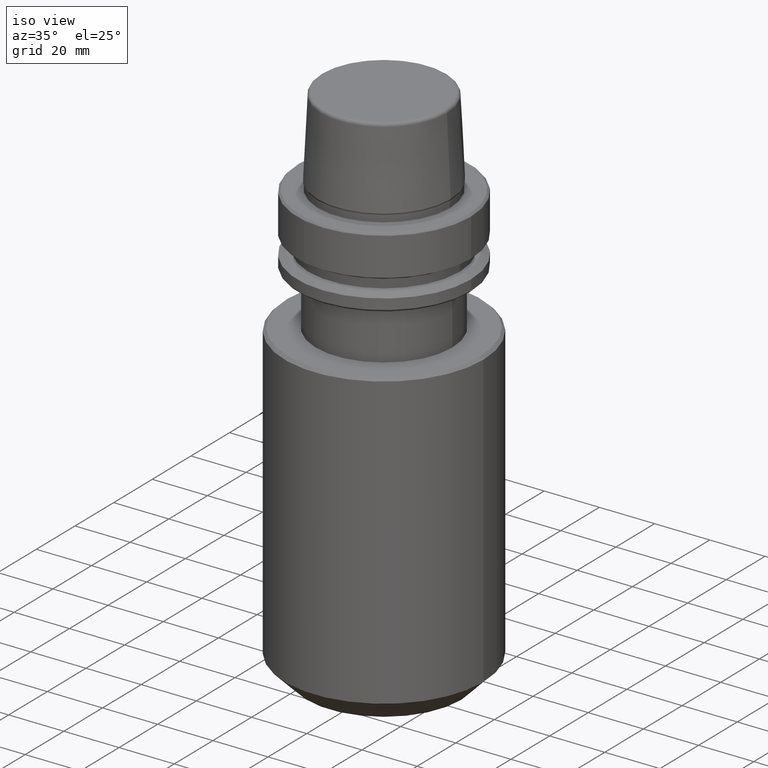
[diagram: clean part render]
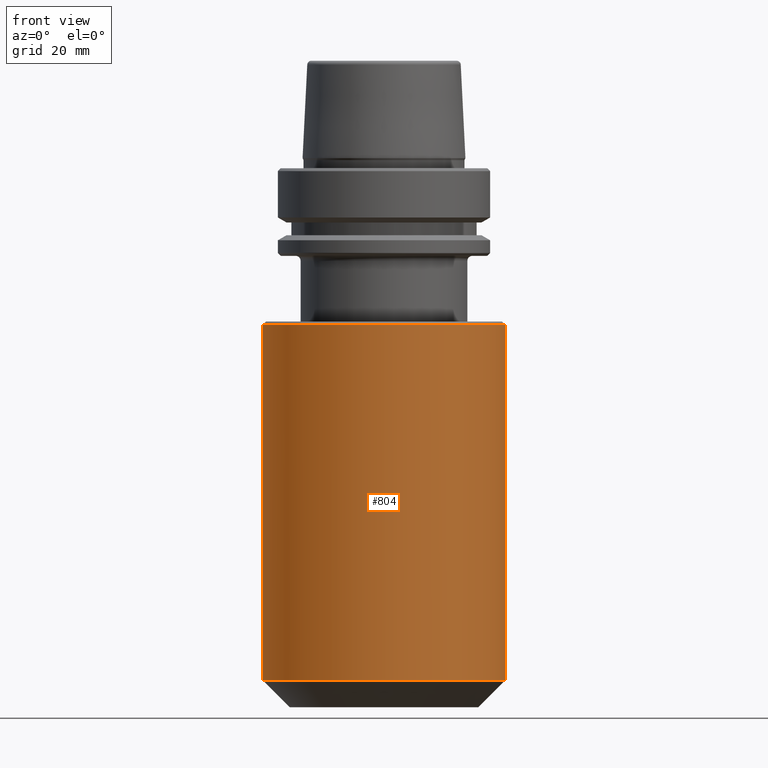
[diagram: tour spotlight — one face highlighted and labeled with its STEP entity id]
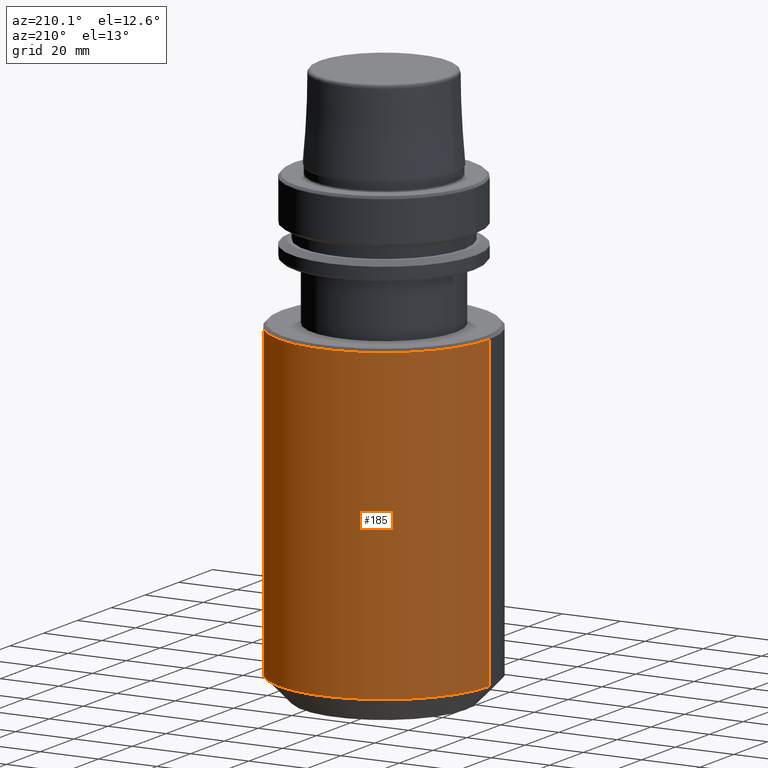
[diagram: tour spotlight — one face highlighted and labeled with its STEP entity id]
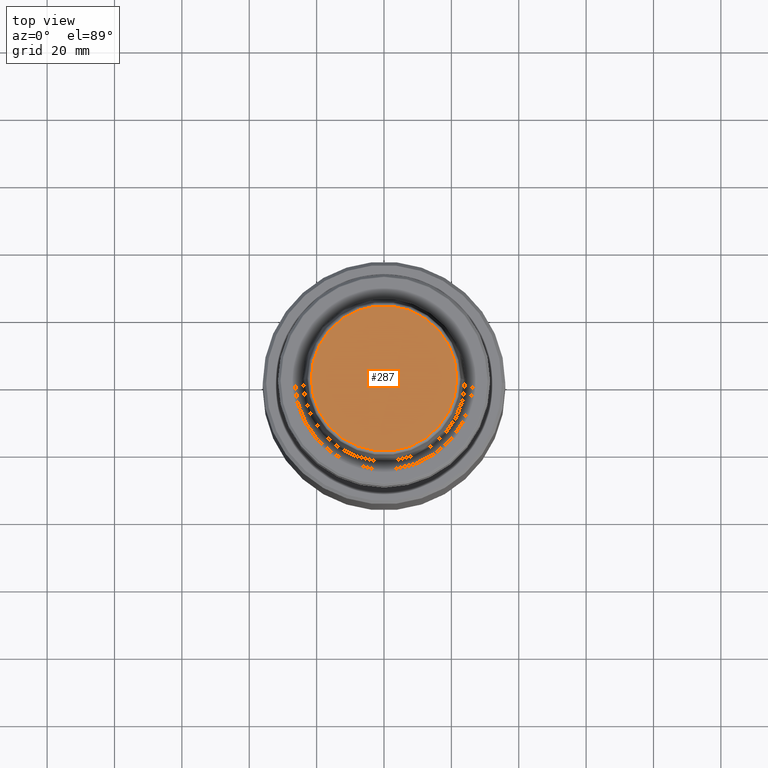
[diagram: tour spotlight — one face highlighted and labeled with its STEP entity id]
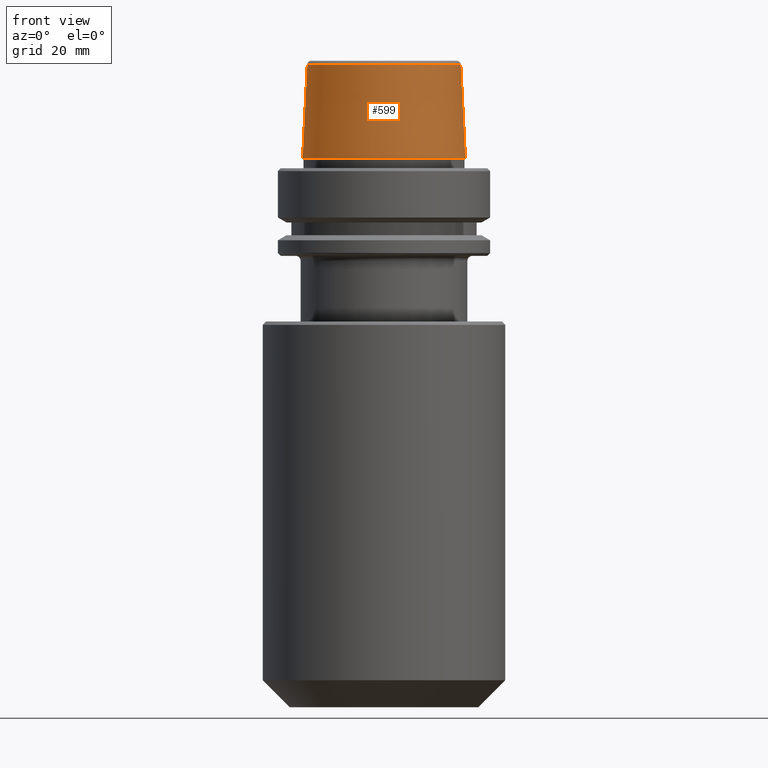
[diagram: tour spotlight — one face highlighted and labeled with its STEP entity id]
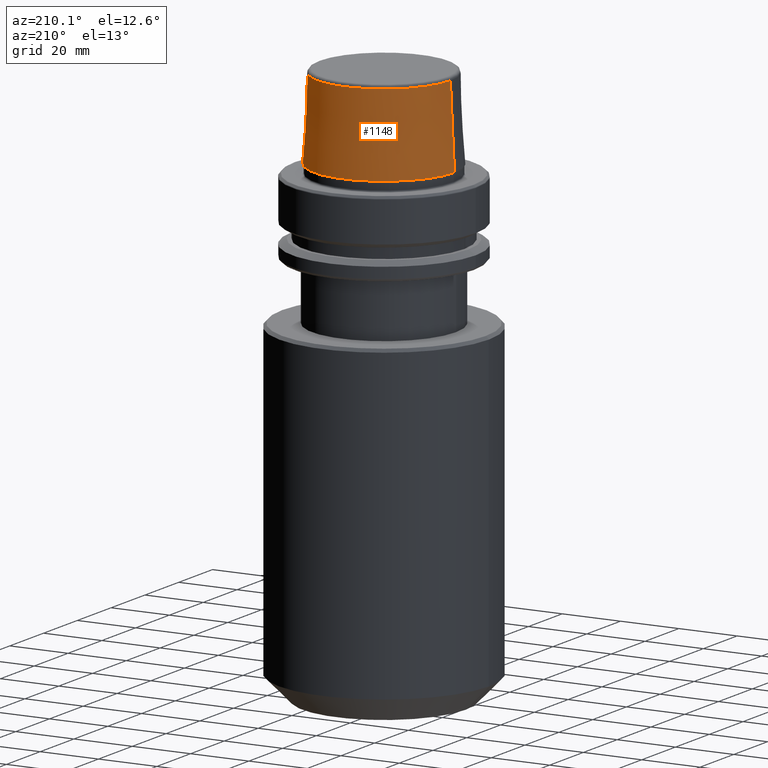
[diagram: tour spotlight — one face highlighted and labeled with its STEP entity id]
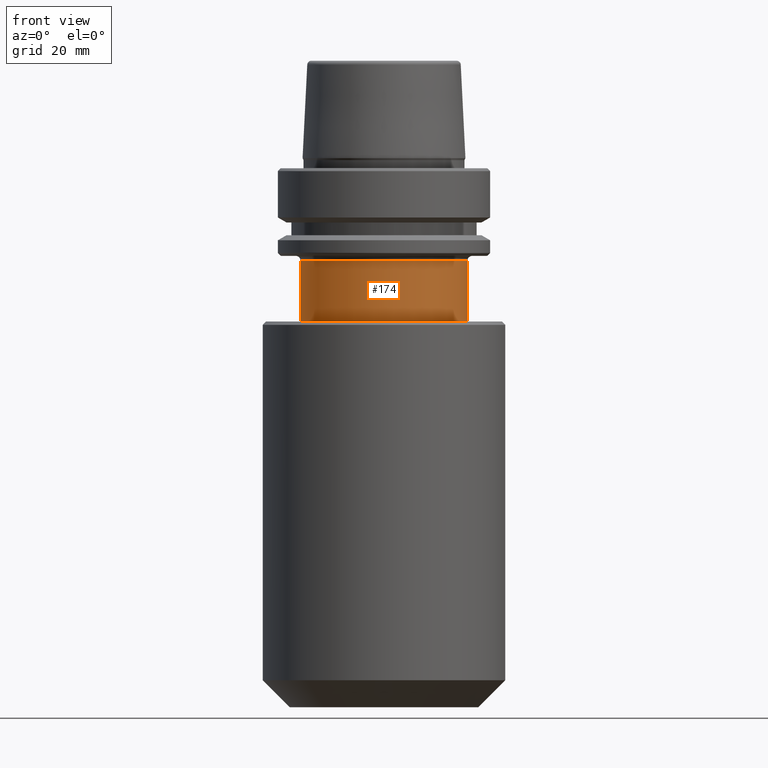
[diagram: tour spotlight — one face highlighted and labeled with its STEP entity id]
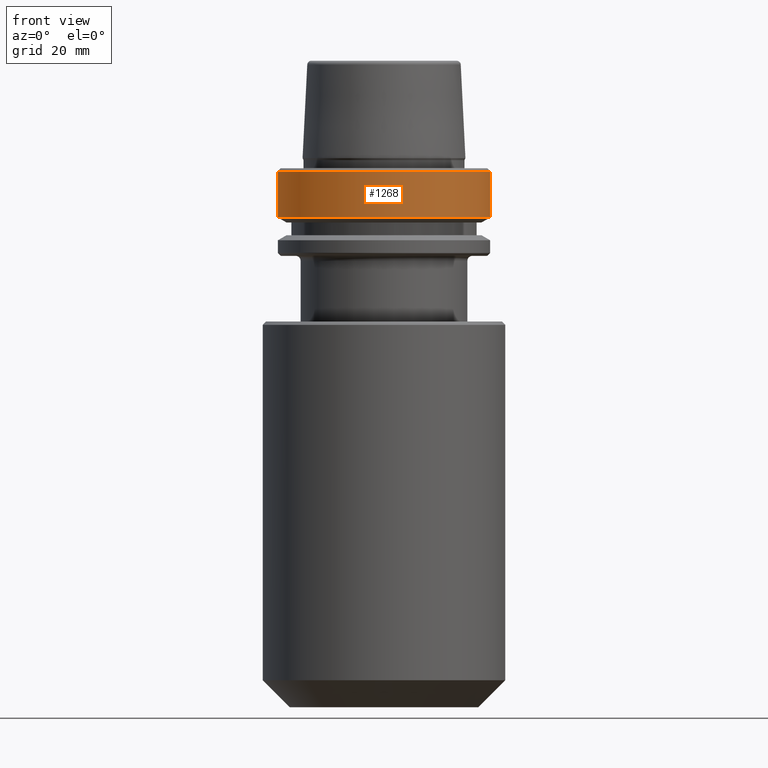
[diagram: tour spotlight — one face highlighted and labeled with its STEP entity id]
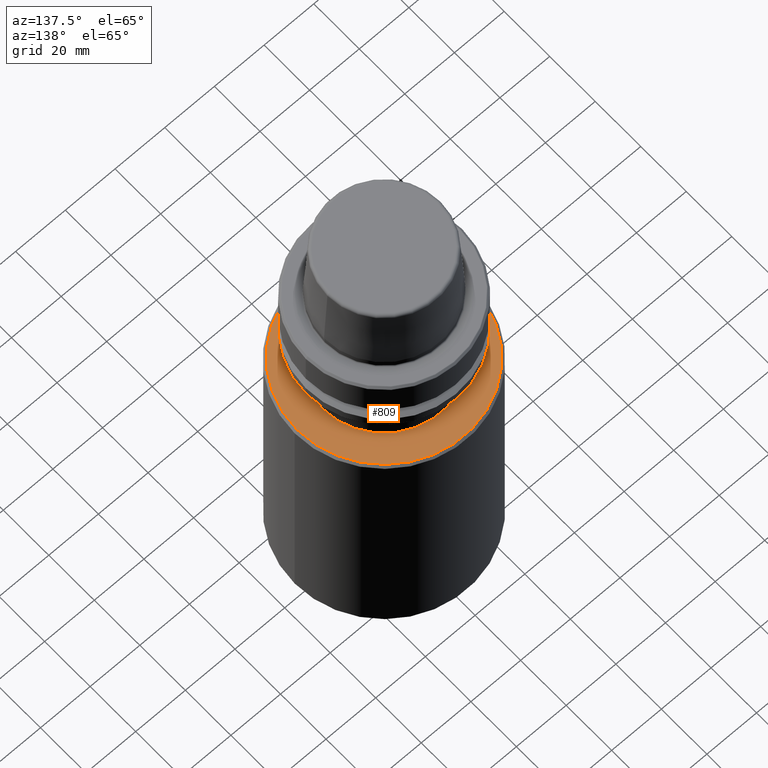
[diagram: tour spotlight — one face highlighted and labeled with its STEP entity id]
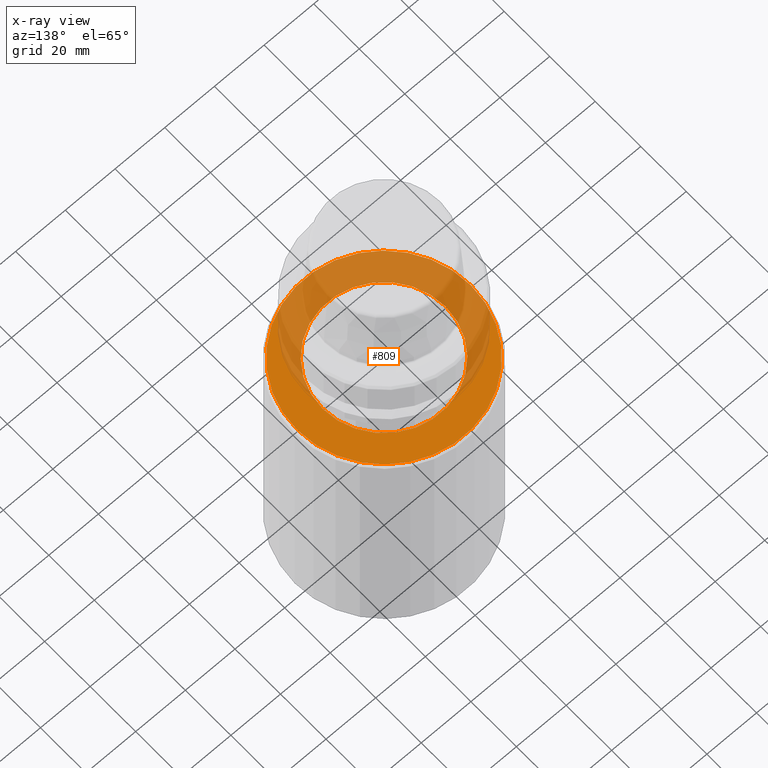
[diagram: x-ray of the same camera — body ghosted, this tour face saturated]
A machine part: a face-by-face anatomy tour. The part has 51 B-rep faces; the first image is the clean iso view, then the 8 largest visible faces are spotlighted one at a time (largest first), each with its STEP entity span.

Face 1 — front view, entity #804. In plain terms, the highlighted cylindrical surface (partial cylindrical patch) has radius 36 mm, axis along (-0, -0, 1).
Definition (entity closure, byte-faithful):
#22 = CARTESIAN_POINT ( 'NONE',  ( -36.00000000000000000, 4.408728476930470900E-015, 31.31059451800105700 ) ) ;
#42 = CIRCLE ( 'NONE', #656, 36.00000000000000000 ) ;
#124 = DIRECTION ( 'NONE',  ( -0.0000000000000000000, -0.0000000000000000000, 1.000000000000000000 ) ) ;
#172 = CYLINDRICAL_SURFACE ( 'NONE', #208, 36.00000000000000000 ) ;
#187 = LINE ( 'NONE', #849, #1352 ) ;
#208 = AXIS2_PLACEMENT_3D ( 'NONE', #550, #436, #964 ) ;
#219 = AXIS2_PLACEMENT_3D ( 'NONE', #327, #956, #224 ) ;
#224 = DIRECTION ( 'NONE',  ( 1.000000000000000000, 0.0000000000000000000, 0.0000000000000000000 ) ) ;
#288 = EDGE_CURVE ( 'NONE', #828, #980, #1283, .T. ) ;
#327 = CARTESIAN_POINT ( 'NONE',  ( 0.0000000000000000000, 0.0000000000000000000, -151.9999999999999700 ) ) ;
#436 = DIRECTION ( 'NONE',  ( -0.0000000000000000000, -0.0000000000000000000, 1.000000000000000000 ) ) ;
#456 = ORIENTED_EDGE ( 'NONE', *, *, #1234, .F. ) ;
#471 = DIRECTION ( 'NONE',  ( 1.000000000000000000, 0.0000000000000000000, 0.0000000000000000000 ) ) ;
#489 = CIRCLE ( 'NONE', #219, 36.00000000000000000 ) ;
#517 = CARTESIAN_POINT ( 'NONE',  ( -36.00000000000000000, 0.0000000000000000000, -46.50000000000001400 ) ) ;
#550 = CARTESIAN_POINT ( 'NONE',  ( 0.0000000000000000000, 0.0000000000000000000, 31.31059451800105700 ) ) ;
#579 = CARTESIAN_POINT ( 'NONE',  ( 0.0000000000000000000, 0.0000000000000000000, -46.50000000000001400 ) ) ;
#580 = VERTEX_POINT ( 'NONE', #1288 ) ;
#656 = AXIS2_PLACEMENT_3D ( 'NONE', #579, #1231, #471 ) ;
#659 = EDGE_LOOP ( 'NONE', ( #1162, #1124, #677, #456 ) ) ;
#677 = ORIENTED_EDGE ( 'NONE', *, *, #806, .T. ) ;
#757 = CARTESIAN_POINT ( 'NONE',  ( 36.00000000000000000, 0.0000000000000000000, -151.9999999999999700 ) ) ;
#771 = VERTEX_POINT ( 'NONE', #757 ) ;
#804 = ADVANCED_FACE ( 'NONE', ( #1323 ), #172, .T. ) ;
#806 = EDGE_CURVE ( 'NONE', #771, #580, #187, .T. ) ;
#811 = EDGE_CURVE ( 'NONE', #828, #771, #489, .T. ) ;
#828 = VERTEX_POINT ( 'NONE', #1310 ) ;
#849 = CARTESIAN_POINT ( 'NONE',  ( 36.00000000000000000, 0.0000000000000000000, 31.31059451800105700 ) ) ;
#956 = DIRECTION ( 'NONE',  ( -0.0000000000000000000, -0.0000000000000000000, 1.000000000000000000 ) ) ;
#964 = DIRECTION ( 'NONE',  ( 1.000000000000000000, 0.0000000000000000000, 0.0000000000000000000 ) ) ;
#980 = VERTEX_POINT ( 'NONE', #517 ) ;
#1124 = ORIENTED_EDGE ( 'NONE', *, *, #811, .T. ) ;
#1162 = ORIENTED_EDGE ( 'NONE', *, *, #288, .F. ) ;
#1173 = DIRECTION ( 'NONE',  ( -0.0000000000000000000, -0.0000000000000000000, 1.000000000000000000 ) ) ;
#1231 = DIRECTION ( 'NONE',  ( -0.0000000000000000000, -0.0000000000000000000, 1.000000000000000000 ) ) ;
#1234 = EDGE_CURVE ( 'NONE', #980, #580, #42, .T. ) ;
#1283 = LINE ( 'NONE', #22, #1379 ) ;
#1288 = CARTESIAN_POINT ( 'NONE',  ( 36.00000000000000000, 4.408728476930470900E-015, -46.50000000000001400 ) ) ;
#1310 = CARTESIAN_POINT ( 'NONE',  ( -36.00000000000000000, 4.408728476930470900E-015, -151.9999999999999700 ) ) ;
#1323 = FACE_OUTER_BOUND ( 'NONE', #659, .T. ) ;
#1352 = VECTOR ( 'NONE', #124, 1000.000000000000000 ) ;
#1379 = VECTOR ( 'NONE', #1173, 1000.000000000000000 ) ;

Face 2 — auxiliary view, entity #185. In plain terms, the highlighted cylindrical surface (partial cylindrical patch) has radius 36 mm, axis along (-0, -0, 1).
Definition (entity closure, byte-faithful):
#1 = EDGE_CURVE ( 'NONE', #771, #828, #560, .T. ) ;
#22 = CARTESIAN_POINT ( 'NONE',  ( -36.00000000000000000, 4.408728476930470900E-015, 31.31059451800105700 ) ) ;
#94 = AXIS2_PLACEMENT_3D ( 'NONE', #819, #1060, #744 ) ;
#124 = DIRECTION ( 'NONE',  ( -0.0000000000000000000, -0.0000000000000000000, 1.000000000000000000 ) ) ;
#185 = ADVANCED_FACE ( 'NONE', ( #324 ), #736, .T. ) ;
#187 = LINE ( 'NONE', #849, #1352 ) ;
#195 = EDGE_CURVE ( 'NONE', #580, #980, #1051, .T. ) ;
#288 = EDGE_CURVE ( 'NONE', #828, #980, #1283, .T. ) ;
#324 = FACE_OUTER_BOUND ( 'NONE', #633, .T. ) ;
#517 = CARTESIAN_POINT ( 'NONE',  ( -36.00000000000000000, 0.0000000000000000000, -46.50000000000001400 ) ) ;
#560 = CIRCLE ( 'NONE', #1195, 36.00000000000000000 ) ;
#580 = VERTEX_POINT ( 'NONE', #1288 ) ;
#613 = DIRECTION ( 'NONE',  ( 1.000000000000000000, 0.0000000000000000000, 0.0000000000000000000 ) ) ;
#633 = EDGE_LOOP ( 'NONE', ( #675, #816, #871, #1188 ) ) ;
#675 = ORIENTED_EDGE ( 'NONE', *, *, #1, .T. ) ;
#691 = DIRECTION ( 'NONE',  ( -0.0000000000000000000, -0.0000000000000000000, 1.000000000000000000 ) ) ;
#736 = CYLINDRICAL_SURFACE ( 'NONE', #94, 36.00000000000000000 ) ;
#744 = DIRECTION ( 'NONE',  ( 1.000000000000000000, 0.0000000000000000000, 0.0000000000000000000 ) ) ;
#757 = CARTESIAN_POINT ( 'NONE',  ( 36.00000000000000000, 0.0000000000000000000, -151.9999999999999700 ) ) ;
#771 = VERTEX_POINT ( 'NONE', #757 ) ;
#806 = EDGE_CURVE ( 'NONE', #771, #580, #187, .T. ) ;
#816 = ORIENTED_EDGE ( 'NONE', *, *, #288, .T. ) ;
#819 = CARTESIAN_POINT ( 'NONE',  ( 0.0000000000000000000, 0.0000000000000000000, 31.31059451800105700 ) ) ;
#828 = VERTEX_POINT ( 'NONE', #1310 ) ;
#849 = CARTESIAN_POINT ( 'NONE',  ( 36.00000000000000000, 0.0000000000000000000, 31.31059451800105700 ) ) ;
#871 = ORIENTED_EDGE ( 'NONE', *, *, #195, .F. ) ;
#960 = CARTESIAN_POINT ( 'NONE',  ( 0.0000000000000000000, 0.0000000000000000000, -46.50000000000001400 ) ) ;
#980 = VERTEX_POINT ( 'NONE', #517 ) ;
#1051 = CIRCLE ( 'NONE', #1235, 36.00000000000000000 ) ;
#1060 = DIRECTION ( 'NONE',  ( -0.0000000000000000000, -0.0000000000000000000, 1.000000000000000000 ) ) ;
#1173 = DIRECTION ( 'NONE',  ( -0.0000000000000000000, -0.0000000000000000000, 1.000000000000000000 ) ) ;
#1188 = ORIENTED_EDGE ( 'NONE', *, *, #806, .F. ) ;
#1195 = AXIS2_PLACEMENT_3D ( 'NONE', #1293, #691, #613 ) ;
#1235 = AXIS2_PLACEMENT_3D ( 'NONE', #960, #1387, #1263 ) ;
#1263 = DIRECTION ( 'NONE',  ( 1.000000000000000000, 0.0000000000000000000, 0.0000000000000000000 ) ) ;
#1283 = LINE ( 'NONE', #22, #1379 ) ;
#1288 = CARTESIAN_POINT ( 'NONE',  ( 36.00000000000000000, 4.408728476930470900E-015, -46.50000000000001400 ) ) ;
#1293 = CARTESIAN_POINT ( 'NONE',  ( 0.0000000000000000000, 0.0000000000000000000, -151.9999999999999700 ) ) ;
#1310 = CARTESIAN_POINT ( 'NONE',  ( -36.00000000000000000, 4.408728476930470900E-015, -151.9999999999999700 ) ) ;
#1352 = VECTOR ( 'NONE', #124, 1000.000000000000000 ) ;
#1379 = VECTOR ( 'NONE', #1173, 1000.000000000000000 ) ;
#1387 = DIRECTION ( 'NONE',  ( -0.0000000000000000000, -0.0000000000000000000, 1.000000000000000000 ) ) ;

Face 3 — top view, entity #287. In plain terms, the highlighted planar face has unit normal (0, 0, -1).
Definition (entity closure, byte-faithful):
#20 = CIRCLE ( 'NONE', #144, 21.58108272732117100 ) ;
#144 = AXIS2_PLACEMENT_3D ( 'NONE', #1236, #485, #1112 ) ;
#242 = VERTEX_POINT ( 'NONE', #1167 ) ;
#287 = ADVANCED_FACE ( 'NONE', ( #391 ), #718, .F. ) ;
#289 = ORIENTED_EDGE ( 'NONE', *, *, #1219, .T. ) ;
#359 = DIRECTION ( 'NONE',  ( -0.0000000000000000000, -0.0000000000000000000, 1.000000000000000000 ) ) ;
#391 = FACE_OUTER_BOUND ( 'NONE', #1009, .T. ) ;
#402 = CARTESIAN_POINT ( 'NONE',  ( 21.58108272732117100, 0.0000000000000000000, 31.89999999999999900 ) ) ;
#418 = VERTEX_POINT ( 'NONE', #402 ) ;
#485 = DIRECTION ( 'NONE',  ( -0.0000000000000000000, -0.0000000000000000000, 1.000000000000000000 ) ) ;
#668 = DIRECTION ( 'NONE',  ( -1.000000000000000000, 0.0000000000000000000, -0.0000000000000000000 ) ) ;
#714 = CARTESIAN_POINT ( 'NONE',  ( 0.0000000000000000000, 6.776263578034402700E-018, 31.89999999999999900 ) ) ;
#718 = PLANE ( 'NONE',  #759 ) ;
#759 = AXIS2_PLACEMENT_3D ( 'NONE', #714, #1040, #668 ) ;
#874 = CIRCLE ( 'NONE', #882, 21.58108272732117100 ) ;
#882 = AXIS2_PLACEMENT_3D ( 'NONE', #1109, #359, #990 ) ;
#943 = ORIENTED_EDGE ( 'NONE', *, *, #1163, .T. ) ;
#990 = DIRECTION ( 'NONE',  ( 1.000000000000000000, 0.0000000000000000000, 0.0000000000000000000 ) ) ;
#1009 = EDGE_LOOP ( 'NONE', ( #289, #943 ) ) ;
#1040 = DIRECTION ( 'NONE',  ( 0.0000000000000000000, 0.0000000000000000000, -1.000000000000000000 ) ) ;
#1109 = CARTESIAN_POINT ( 'NONE',  ( 0.0000000000000000000, 0.0000000000000000000, 31.89999999999999900 ) ) ;
#1112 = DIRECTION ( 'NONE',  ( 1.000000000000000000, 0.0000000000000000000, 0.0000000000000000000 ) ) ;
#1163 = EDGE_CURVE ( 'NONE', #242, #418, #20, .T. ) ;
#1167 = CARTESIAN_POINT ( 'NONE',  ( -21.58108272732117100, 2.716307157494421400E-015, 31.89999999999999900 ) ) ;
#1219 = EDGE_CURVE ( 'NONE', #418, #242, #874, .T. ) ;
#1236 = CARTESIAN_POINT ( 'NONE',  ( 0.0000000000000000000, 0.0000000000000000000, 31.89999999999999900 ) ) ;

Face 4 — front view, entity #599. In plain terms, the highlighted conical surface has half-angle 2.868 deg.
Definition (entity closure, byte-faithful):
#41 = VERTEX_POINT ( 'NONE', #1169 ) ;
#56 = CIRCLE ( 'NONE', #972, 22.77957961851797500 ) ;
#126 = EDGE_CURVE ( 'NONE', #177, #41, #996, .T. ) ;
#156 = EDGE_CURVE ( 'NONE', #177, #1035, #56, .T. ) ;
#158 = AXIS2_PLACEMENT_3D ( 'NONE', #396, #1022, #290 ) ;
#177 = VERTEX_POINT ( 'NONE', #731 ) ;
#290 = DIRECTION ( 'NONE',  ( 1.000000000000000000, 0.0000000000000000000, 0.0000000000000000000 ) ) ;
#291 = EDGE_CURVE ( 'NONE', #1035, #1001, #860, .T. ) ;
#353 = CARTESIAN_POINT ( 'NONE',  ( 0.0000000000000000000, 0.0000000000000000000, 3.000000000000002700 ) ) ;
#365 = EDGE_LOOP ( 'NONE', ( #797, #1150, #1260, #548 ) ) ;
#396 = CARTESIAN_POINT ( 'NONE',  ( 0.0000000000000000000, 0.0000000000000000000, 3.000000000000002700 ) ) ;
#454 = DIRECTION ( 'NONE',  ( 0.05003611051310799500, 6.127656258166094300E-018, -0.9987474093306675200 ) ) ;
#463 = VECTOR ( 'NONE', #454, 1000.000000000000200 ) ;
#473 = CARTESIAN_POINT ( 'NONE',  ( -24.17032625081241900, 0.0000000000000000000, 3.000000000000002700 ) ) ;
#506 = CARTESIAN_POINT ( 'NONE',  ( 22.77957961851797500, 0.0000000000000000000, 30.76004333261571900 ) ) ;
#519 = CARTESIAN_POINT ( 'NONE',  ( 24.17032625081241900, 2.960011267740467600E-015, 3.000000000000002700 ) ) ;
#548 = ORIENTED_EDGE ( 'NONE', *, *, #1020, .T. ) ;
#599 = ADVANCED_FACE ( 'NONE', ( #1383 ), #879, .T. ) ;
#636 = DIRECTION ( 'NONE',  ( 0.0000000000000000000, 0.0000000000000000000, -1.000000000000000000 ) ) ;
#692 = CIRCLE ( 'NONE', #158, 24.17032625081241900 ) ;
#700 = VECTOR ( 'NONE', #908, 1000.000000000000200 ) ;
#731 = CARTESIAN_POINT ( 'NONE',  ( -22.77957961851797500, 2.789693926574032200E-015, 30.76004333261571900 ) ) ;
#797 = ORIENTED_EDGE ( 'NONE', *, *, #291, .F. ) ;
#860 = LINE ( 'NONE', #1119, #463 ) ;
#879 = CONICAL_SURFACE ( 'NONE', #1159, 24.17032625081241900, 0.05005701257455992500 ) ;
#908 = DIRECTION ( 'NONE',  ( -0.05003611051310799500, 0.0000000000000000000, -0.9987474093306675200 ) ) ;
#972 = AXIS2_PLACEMENT_3D ( 'NONE', #1074, #1048, #1360 ) ;
#996 = LINE ( 'NONE', #473, #700 ) ;
#1001 = VERTEX_POINT ( 'NONE', #519 ) ;
#1020 = EDGE_CURVE ( 'NONE', #41, #1001, #692, .T. ) ;
#1022 = DIRECTION ( 'NONE',  ( -0.0000000000000000000, -0.0000000000000000000, 1.000000000000000000 ) ) ;
#1035 = VERTEX_POINT ( 'NONE', #506 ) ;
#1048 = DIRECTION ( 'NONE',  ( -0.0000000000000000000, -0.0000000000000000000, 1.000000000000000000 ) ) ;
#1074 = CARTESIAN_POINT ( 'NONE',  ( 0.0000000000000000000, 0.0000000000000000000, 30.76004333261571900 ) ) ;
#1119 = CARTESIAN_POINT ( 'NONE',  ( 24.17032625081241900, 2.960011267740467600E-015, 3.000000000000002700 ) ) ;
#1150 = ORIENTED_EDGE ( 'NONE', *, *, #156, .F. ) ;
#1159 = AXIS2_PLACEMENT_3D ( 'NONE', #353, #636, #1290 ) ;
#1169 = CARTESIAN_POINT ( 'NONE',  ( -24.17032625081241900, 0.0000000000000000000, 3.000000000000002700 ) ) ;
#1260 = ORIENTED_EDGE ( 'NONE', *, *, #126, .T. ) ;
#1290 = DIRECTION ( 'NONE',  ( -1.000000000000000000, 0.0000000000000000000, 0.0000000000000000000 ) ) ;
#1360 = DIRECTION ( 'NONE',  ( 1.000000000000000000, 0.0000000000000000000, 0.0000000000000000000 ) ) ;
#1383 = FACE_OUTER_BOUND ( 'NONE', #365, .T. ) ;

Face 5 — auxiliary view, entity #1148. In plain terms, the highlighted conical surface has half-angle 2.868 deg.
Definition (entity closure, byte-faithful):
#41 = VERTEX_POINT ( 'NONE', #1169 ) ;
#47 = CARTESIAN_POINT ( 'NONE',  ( 0.0000000000000000000, 0.0000000000000000000, 3.000000000000002700 ) ) ;
#71 = AXIS2_PLACEMENT_3D ( 'NONE', #171, #72, #1134 ) ;
#72 = DIRECTION ( 'NONE',  ( 0.0000000000000000000, 0.0000000000000000000, -1.000000000000000000 ) ) ;
#126 = EDGE_CURVE ( 'NONE', #177, #41, #996, .T. ) ;
#128 = EDGE_CURVE ( 'NONE', #1001, #41, #1259, .T. ) ;
#163 = CONICAL_SURFACE ( 'NONE', #71, 24.17032625081241900, 0.05005701257455992500 ) ;
#171 = CARTESIAN_POINT ( 'NONE',  ( 0.0000000000000000000, 0.0000000000000000000, 3.000000000000002700 ) ) ;
#177 = VERTEX_POINT ( 'NONE', #731 ) ;
#291 = EDGE_CURVE ( 'NONE', #1035, #1001, #860, .T. ) ;
#405 = EDGE_CURVE ( 'NONE', #1035, #177, #566, .T. ) ;
#454 = DIRECTION ( 'NONE',  ( 0.05003611051310799500, 6.127656258166094300E-018, -0.9987474093306675200 ) ) ;
#463 = VECTOR ( 'NONE', #454, 1000.000000000000200 ) ;
#473 = CARTESIAN_POINT ( 'NONE',  ( -24.17032625081241900, 0.0000000000000000000, 3.000000000000002700 ) ) ;
#478 = EDGE_LOOP ( 'NONE', ( #781, #1359, #1165, #765 ) ) ;
#506 = CARTESIAN_POINT ( 'NONE',  ( 22.77957961851797500, 0.0000000000000000000, 30.76004333261571900 ) ) ;
#519 = CARTESIAN_POINT ( 'NONE',  ( 24.17032625081241900, 2.960011267740467600E-015, 3.000000000000002700 ) ) ;
#566 = CIRCLE ( 'NONE', #1100, 22.77957961851797500 ) ;
#582 = DIRECTION ( 'NONE',  ( -0.0000000000000000000, -0.0000000000000000000, 1.000000000000000000 ) ) ;
#700 = VECTOR ( 'NONE', #908, 1000.000000000000200 ) ;
#731 = CARTESIAN_POINT ( 'NONE',  ( -22.77957961851797500, 2.789693926574032200E-015, 30.76004333261571900 ) ) ;
#765 = ORIENTED_EDGE ( 'NONE', *, *, #126, .F. ) ;
#781 = ORIENTED_EDGE ( 'NONE', *, *, #405, .F. ) ;
#847 = FACE_OUTER_BOUND ( 'NONE', #478, .T. ) ;
#860 = LINE ( 'NONE', #1119, #463 ) ;
#905 = DIRECTION ( 'NONE',  ( 1.000000000000000000, 0.0000000000000000000, 0.0000000000000000000 ) ) ;
#908 = DIRECTION ( 'NONE',  ( -0.05003611051310799500, 0.0000000000000000000, -0.9987474093306675200 ) ) ;
#919 = AXIS2_PLACEMENT_3D ( 'NONE', #47, #1000, #1089 ) ;
#996 = LINE ( 'NONE', #473, #700 ) ;
#1000 = DIRECTION ( 'NONE',  ( -0.0000000000000000000, -0.0000000000000000000, 1.000000000000000000 ) ) ;
#1001 = VERTEX_POINT ( 'NONE', #519 ) ;
#1035 = VERTEX_POINT ( 'NONE', #506 ) ;
#1089 = DIRECTION ( 'NONE',  ( 1.000000000000000000, 0.0000000000000000000, 0.0000000000000000000 ) ) ;
#1100 = AXIS2_PLACEMENT_3D ( 'NONE', #1233, #582, #905 ) ;
#1119 = CARTESIAN_POINT ( 'NONE',  ( 24.17032625081241900, 2.960011267740467600E-015, 3.000000000000002700 ) ) ;
#1134 = DIRECTION ( 'NONE',  ( -1.000000000000000000, 0.0000000000000000000, 0.0000000000000000000 ) ) ;
#1148 = ADVANCED_FACE ( 'NONE', ( #847 ), #163, .T. ) ;
#1165 = ORIENTED_EDGE ( 'NONE', *, *, #128, .T. ) ;
#1169 = CARTESIAN_POINT ( 'NONE',  ( -24.17032625081241900, 0.0000000000000000000, 3.000000000000002700 ) ) ;
#1233 = CARTESIAN_POINT ( 'NONE',  ( 0.0000000000000000000, 0.0000000000000000000, 30.76004333261571900 ) ) ;
#1259 = CIRCLE ( 'NONE', #919, 24.17032625081241900 ) ;
#1359 = ORIENTED_EDGE ( 'NONE', *, *, #291, .T. ) ;

Face 6 — front view, entity #174. In plain terms, the highlighted cylindrical surface (partial cylindrical patch) has radius 24.75 mm, axis along (-0, -0, 1).
Definition (entity closure, byte-faithful):
#30 = AXIS2_PLACEMENT_3D ( 'NONE', #318, #944, #220 ) ;
#58 = VECTOR ( 'NONE', #448, 1000.000000000000000 ) ;
#100 = ORIENTED_EDGE ( 'NONE', *, *, #1077, .T. ) ;
#110 = CARTESIAN_POINT ( 'NONE',  ( -24.75000000000000000, 3.031000827889699300E-015, -27.50000000000001100 ) ) ;
#142 = CARTESIAN_POINT ( 'NONE',  ( 24.75000000000000000, 0.0000000000000000000, -27.50000000000001100 ) ) ;
#174 = ADVANCED_FACE ( 'NONE', ( #608 ), #217, .T. ) ;
#217 = CYLINDRICAL_SURFACE ( 'NONE', #575, 24.75000000000000000 ) ;
#220 = DIRECTION ( 'NONE',  ( 1.000000000000000000, 0.0000000000000000000, 0.0000000000000000000 ) ) ;
#221 = LINE ( 'NONE', #729, #711 ) ;
#235 = DIRECTION ( 'NONE',  ( 1.000000000000000000, 0.0000000000000000000, 0.0000000000000000000 ) ) ;
#267 = CARTESIAN_POINT ( 'NONE',  ( 24.75000000000000000, 0.0000000000000000000, -45.50000000000001400 ) ) ;
#316 = EDGE_CURVE ( 'NONE', #799, #891, #1090, .T. ) ;
#318 = CARTESIAN_POINT ( 'NONE',  ( 0.0000000000000000000, 0.0000000000000000000, -45.50000000000001400 ) ) ;
#361 = AXIS2_PLACEMENT_3D ( 'NONE', #502, #1139, #379 ) ;
#379 = DIRECTION ( 'NONE',  ( 1.000000000000000000, 0.0000000000000000000, 0.0000000000000000000 ) ) ;
#422 = VERTEX_POINT ( 'NONE', #267 ) ;
#448 = DIRECTION ( 'NONE',  ( -0.0000000000000000000, -0.0000000000000000000, 1.000000000000000000 ) ) ;
#462 = CARTESIAN_POINT ( 'NONE',  ( 0.0000000000000000000, 0.0000000000000000000, 31.31059451800105700 ) ) ;
#502 = CARTESIAN_POINT ( 'NONE',  ( 0.0000000000000000000, 0.0000000000000000000, -27.50000000000001100 ) ) ;
#575 = AXIS2_PLACEMENT_3D ( 'NONE', #462, #789, #235 ) ;
#608 = FACE_OUTER_BOUND ( 'NONE', #1305, .T. ) ;
#711 = VECTOR ( 'NONE', #1045, 1000.000000000000000 ) ;
#729 = CARTESIAN_POINT ( 'NONE',  ( 24.75000000000000000, 0.0000000000000000000, 31.31059451800105700 ) ) ;
#789 = DIRECTION ( 'NONE',  ( -0.0000000000000000000, -0.0000000000000000000, 1.000000000000000000 ) ) ;
#799 = VERTEX_POINT ( 'NONE', #1325 ) ;
#854 = EDGE_CURVE ( 'NONE', #799, #422, #865, .T. ) ;
#865 = CIRCLE ( 'NONE', #30, 24.75000000000000000 ) ;
#885 = CIRCLE ( 'NONE', #361, 24.75000000000000000 ) ;
#891 = VERTEX_POINT ( 'NONE', #110 ) ;
#925 = EDGE_CURVE ( 'NONE', #422, #1357, #221, .T. ) ;
#944 = DIRECTION ( 'NONE',  ( -0.0000000000000000000, -0.0000000000000000000, 1.000000000000000000 ) ) ;
#961 = ORIENTED_EDGE ( 'NONE', *, *, #316, .F. ) ;
#993 = ORIENTED_EDGE ( 'NONE', *, *, #854, .T. ) ;
#1021 = CARTESIAN_POINT ( 'NONE',  ( -24.75000000000000000, 3.031000827889699300E-015, 31.31059451800105700 ) ) ;
#1045 = DIRECTION ( 'NONE',  ( -0.0000000000000000000, -0.0000000000000000000, 1.000000000000000000 ) ) ;
#1077 = EDGE_CURVE ( 'NONE', #1357, #891, #885, .T. ) ;
#1090 = LINE ( 'NONE', #1021, #58 ) ;
#1139 = DIRECTION ( 'NONE',  ( 0.0000000000000000000, 0.0000000000000000000, -1.000000000000000000 ) ) ;
#1305 = EDGE_LOOP ( 'NONE', ( #961, #993, #1314, #100 ) ) ;
#1314 = ORIENTED_EDGE ( 'NONE', *, *, #925, .T. ) ;
#1325 = CARTESIAN_POINT ( 'NONE',  ( -24.75000000000000000, 3.031000827889699300E-015, -45.50000000000001400 ) ) ;
#1357 = VERTEX_POINT ( 'NONE', #142 ) ;

Face 7 — front view, entity #1268. In plain terms, the highlighted cylindrical surface (partial cylindrical patch) has radius 31.5 mm, axis along (-0, -0, 1).
Definition (entity closure, byte-faithful):
#10 = EDGE_LOOP ( 'NONE', ( #364, #162, #626, #98 ) ) ;
#35 = DIRECTION ( 'NONE',  ( 1.000000000000000000, 0.0000000000000000000, 0.0000000000000000000 ) ) ;
#98 = ORIENTED_EDGE ( 'NONE', *, *, #465, .F. ) ;
#162 = ORIENTED_EDGE ( 'NONE', *, *, #648, .T. ) ;
#166 = FACE_OUTER_BOUND ( 'NONE', #10, .T. ) ;
#178 = VERTEX_POINT ( 'NONE', #801 ) ;
#198 = DIRECTION ( 'NONE',  ( -0.0000000000000000000, -0.0000000000000000000, 1.000000000000000000 ) ) ;
#203 = LINE ( 'NONE', #378, #1187 ) ;
#276 = CYLINDRICAL_SURFACE ( 'NONE', #425, 31.50000000000000000 ) ;
#346 = DIRECTION ( 'NONE',  ( 1.000000000000000000, 0.0000000000000000000, 0.0000000000000000000 ) ) ;
#364 = ORIENTED_EDGE ( 'NONE', *, *, #989, .F. ) ;
#378 = CARTESIAN_POINT ( 'NONE',  ( 31.50000000000000000, 0.0000000000000000000, 78.96908074195309300 ) ) ;
#390 = CARTESIAN_POINT ( 'NONE',  ( -31.50000000000000000, 3.857637417314162700E-015, -14.62250092524070100 ) ) ;
#425 = AXIS2_PLACEMENT_3D ( 'NONE', #1337, #574, #682 ) ;
#446 = CARTESIAN_POINT ( 'NONE',  ( 31.50000000000000000, 0.0000000000000000000, -14.62250092524070100 ) ) ;
#465 = EDGE_CURVE ( 'NONE', #639, #178, #862, .T. ) ;
#475 = CARTESIAN_POINT ( 'NONE',  ( 0.0000000000000000000, 0.0000000000000000000, -0.9656854249492363700 ) ) ;
#520 = CARTESIAN_POINT ( 'NONE',  ( -31.50000000000000000, 3.857637417314162700E-015, -0.9656854249492363700 ) ) ;
#574 = DIRECTION ( 'NONE',  ( -0.0000000000000000000, -0.0000000000000000000, 1.000000000000000000 ) ) ;
#578 = EDGE_CURVE ( 'NONE', #1373, #178, #203, .T. ) ;
#592 = DIRECTION ( 'NONE',  ( -0.0000000000000000000, -0.0000000000000000000, 1.000000000000000000 ) ) ;
#621 = VECTOR ( 'NONE', #198, 1000.000000000000000 ) ;
#626 = ORIENTED_EDGE ( 'NONE', *, *, #578, .T. ) ;
#639 = VERTEX_POINT ( 'NONE', #520 ) ;
#648 = EDGE_CURVE ( 'NONE', #1065, #1373, #895, .T. ) ;
#682 = DIRECTION ( 'NONE',  ( 1.000000000000000000, 0.0000000000000000000, 0.0000000000000000000 ) ) ;
#801 = CARTESIAN_POINT ( 'NONE',  ( 31.50000000000000000, 0.0000000000000000000, -0.9656854249492363700 ) ) ;
#862 = CIRCLE ( 'NONE', #1249, 31.50000000000000000 ) ;
#863 = DIRECTION ( 'NONE',  ( -0.0000000000000000000, -0.0000000000000000000, 1.000000000000000000 ) ) ;
#895 = CIRCLE ( 'NONE', #936, 31.50000000000000000 ) ;
#927 = CARTESIAN_POINT ( 'NONE',  ( -31.50000000000000000, 3.857637417314162700E-015, 78.96908074195309300 ) ) ;
#936 = AXIS2_PLACEMENT_3D ( 'NONE', #1141, #1254, #346 ) ;
#989 = EDGE_CURVE ( 'NONE', #1065, #639, #1215, .T. ) ;
#1065 = VERTEX_POINT ( 'NONE', #390 ) ;
#1141 = CARTESIAN_POINT ( 'NONE',  ( 0.0000000000000000000, 0.0000000000000000000, -14.62250092524070100 ) ) ;
#1187 = VECTOR ( 'NONE', #863, 1000.000000000000000 ) ;
#1215 = LINE ( 'NONE', #927, #621 ) ;
#1249 = AXIS2_PLACEMENT_3D ( 'NONE', #475, #592, #35 ) ;
#1254 = DIRECTION ( 'NONE',  ( -0.0000000000000000000, -0.0000000000000000000, 1.000000000000000000 ) ) ;
#1268 = ADVANCED_FACE ( 'NONE', ( #166 ), #276, .T. ) ;
#1337 = CARTESIAN_POINT ( 'NONE',  ( 0.0000000000000000000, 0.0000000000000000000, 78.96908074195309300 ) ) ;
#1373 = VERTEX_POINT ( 'NONE', #446 ) ;

Face 8 — auxiliary view, entity #809. An x-ray twin of the same camera follows (body ghosted, this face saturated) — the face is partly hidden behind the body. In plain terms, the highlighted planar face has unit normal (0, 0, -1).
Definition (entity closure, byte-faithful):
#23 = CIRCLE ( 'NONE', #1191, 34.99999999999999300 ) ;
#25 = DIRECTION ( 'NONE',  ( 0.0000000000000000000, 0.0000000000000000000, -1.000000000000000000 ) ) ;
#30 = AXIS2_PLACEMENT_3D ( 'NONE', #318, #944, #220 ) ;
#54 = ORIENTED_EDGE ( 'NONE', *, *, #854, .F. ) ;
#84 = ORIENTED_EDGE ( 'NONE', *, *, #880, .T. ) ;
#115 = CARTESIAN_POINT ( 'NONE',  ( -34.99999999999999300, 0.0000000000000000000, -45.50000000000001400 ) ) ;
#155 = ORIENTED_EDGE ( 'NONE', *, *, #534, .F. ) ;
#173 = CARTESIAN_POINT ( 'NONE',  ( 0.0000000000000000000, 0.0000000000000000000, -45.50000000000001400 ) ) ;
#188 = AXIS2_PLACEMENT_3D ( 'NONE', #1050, #313, #941 ) ;
#211 = AXIS2_PLACEMENT_3D ( 'NONE', #672, #836, #567 ) ;
#220 = DIRECTION ( 'NONE',  ( 1.000000000000000000, 0.0000000000000000000, 0.0000000000000000000 ) ) ;
#267 = CARTESIAN_POINT ( 'NONE',  ( 24.75000000000000000, 0.0000000000000000000, -45.50000000000001400 ) ) ;
#313 = DIRECTION ( 'NONE',  ( -0.0000000000000000000, -0.0000000000000000000, 1.000000000000000000 ) ) ;
#318 = CARTESIAN_POINT ( 'NONE',  ( 0.0000000000000000000, 0.0000000000000000000, -45.50000000000001400 ) ) ;
#319 = DIRECTION ( 'NONE',  ( 1.000000000000000000, 0.0000000000000000000, 0.0000000000000000000 ) ) ;
#342 = DIRECTION ( 'NONE',  ( -0.0000000000000000000, -0.0000000000000000000, 1.000000000000000000 ) ) ;
#347 = EDGE_LOOP ( 'NONE', ( #155, #54 ) ) ;
#412 = FACE_BOUND ( 'NONE', #347, .T. ) ;
#413 = EDGE_CURVE ( 'NONE', #842, #1240, #23, .T. ) ;
#422 = VERTEX_POINT ( 'NONE', #267 ) ;
#457 = EDGE_LOOP ( 'NONE', ( #832, #84 ) ) ;
#530 = CIRCLE ( 'NONE', #211, 24.75000000000000000 ) ;
#534 = EDGE_CURVE ( 'NONE', #422, #799, #530, .T. ) ;
#567 = DIRECTION ( 'NONE',  ( 1.000000000000000000, 0.0000000000000000000, 0.0000000000000000000 ) ) ;
#618 = AXIS2_PLACEMENT_3D ( 'NONE', #1067, #25, #650 ) ;
#650 = DIRECTION ( 'NONE',  ( -1.000000000000000000, 0.0000000000000000000, -0.0000000000000000000 ) ) ;
#672 = CARTESIAN_POINT ( 'NONE',  ( 0.0000000000000000000, 0.0000000000000000000, -45.50000000000001400 ) ) ;
#745 = PLANE ( 'NONE',  #618 ) ;
#799 = VERTEX_POINT ( 'NONE', #1325 ) ;
#809 = ADVANCED_FACE ( 'NONE', ( #412, #1095 ), #745, .F. ) ;
#832 = ORIENTED_EDGE ( 'NONE', *, *, #413, .T. ) ;
#836 = DIRECTION ( 'NONE',  ( -0.0000000000000000000, -0.0000000000000000000, 1.000000000000000000 ) ) ;
#842 = VERTEX_POINT ( 'NONE', #115 ) ;
#854 = EDGE_CURVE ( 'NONE', #799, #422, #865, .T. ) ;
#865 = CIRCLE ( 'NONE', #30, 24.75000000000000000 ) ;
#880 = EDGE_CURVE ( 'NONE', #1240, #842, #1309, .T. ) ;
#883 = CARTESIAN_POINT ( 'NONE',  ( 34.99999999999999300, 4.347496136973103300E-015, -45.50000000000001400 ) ) ;
#941 = DIRECTION ( 'NONE',  ( 1.000000000000000000, 0.0000000000000000000, 0.0000000000000000000 ) ) ;
#944 = DIRECTION ( 'NONE',  ( -0.0000000000000000000, -0.0000000000000000000, 1.000000000000000000 ) ) ;
#1050 = CARTESIAN_POINT ( 'NONE',  ( 0.0000000000000000000, 0.0000000000000000000, -45.50000000000001400 ) ) ;
#1067 = CARTESIAN_POINT ( 'NONE',  ( 0.0000000000000000000, 24.75000000000000000, -45.50000000000001400 ) ) ;
#1095 = FACE_OUTER_BOUND ( 'NONE', #457, .T. ) ;
#1191 = AXIS2_PLACEMENT_3D ( 'NONE', #173, #342, #319 ) ;
#1240 = VERTEX_POINT ( 'NONE', #883 ) ;
#1309 = CIRCLE ( 'NONE', #188, 34.99999999999999300 ) ;
#1325 = CARTESIAN_POINT ( 'NONE',  ( -24.75000000000000000, 3.031000827889699300E-015, -45.50000000000001400 ) ) ;